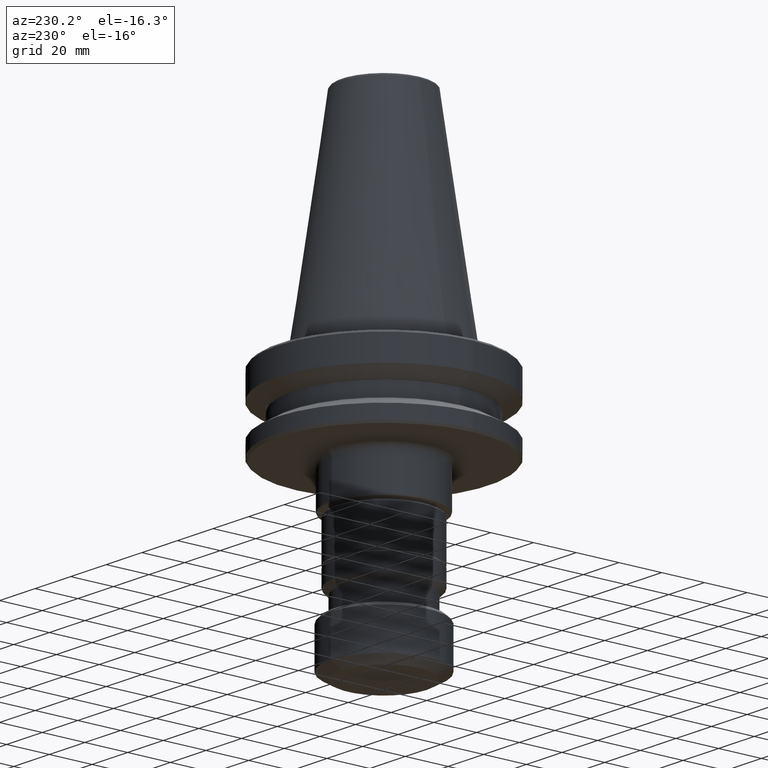
[diagram: clean part render]
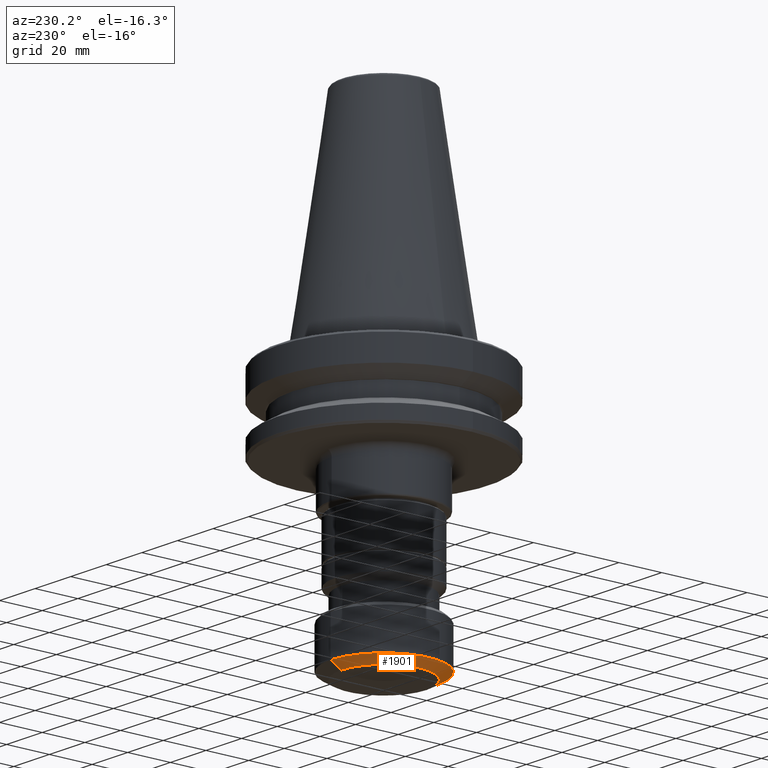
[diagram: same view with one face highlighted and labeled with its STEP entity id]
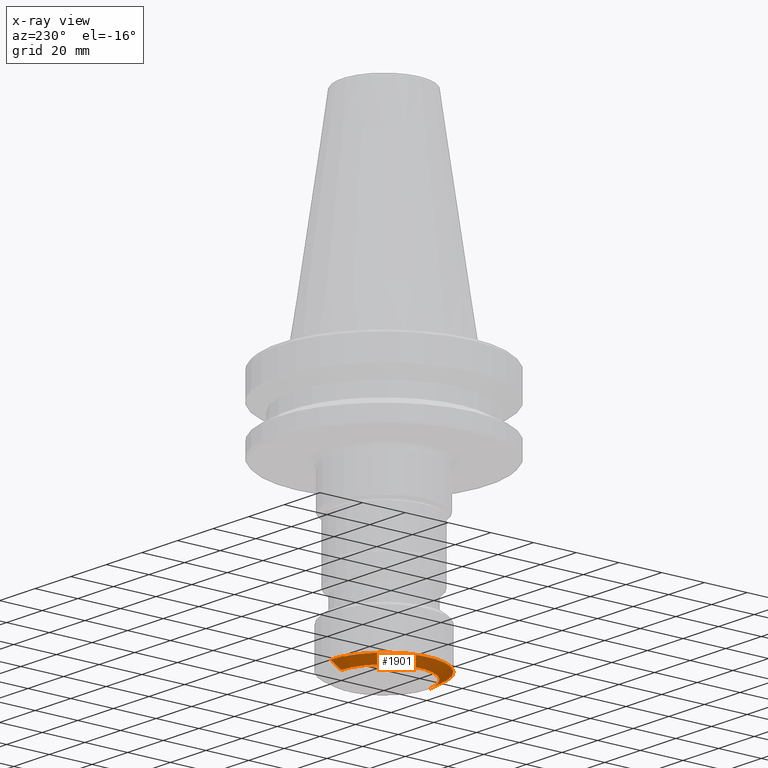
[diagram: x-ray of the same camera — body ghosted, the highlighted face saturated]
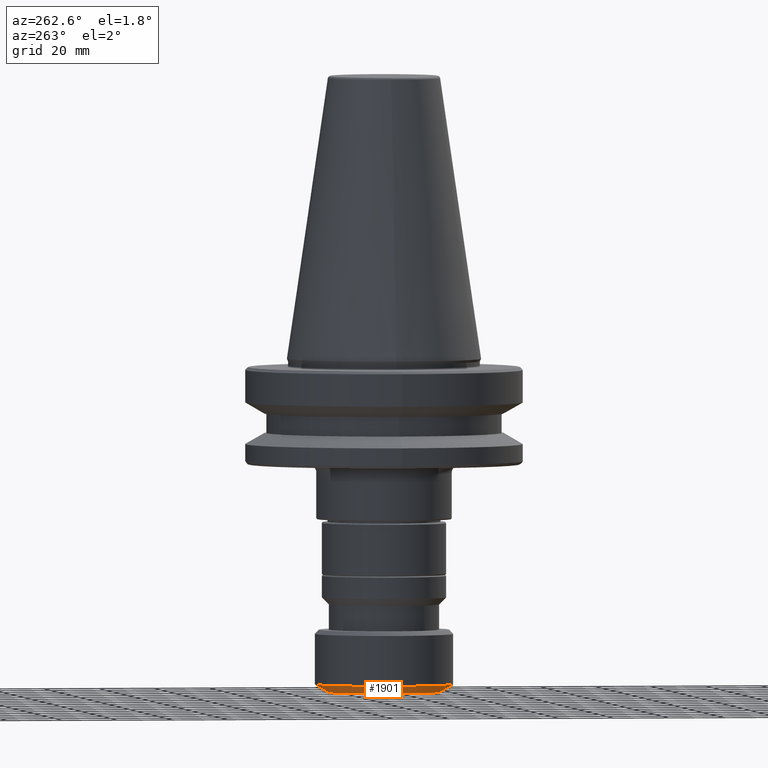
[diagram: same view with one face highlighted and labeled with its STEP entity id]
A machine part, auxiliary view. The second image highlights one B-rep face of the part: STEP entity #1901.
The next image is the same camera in x-ray: the body ghosted, the highlighted face saturated — about 0% of this face is hidden behind the body in this view.
A second angle (auxiliary view) of the same face is appended — the face is thin or edge-on in the first view.
In plain terms, the highlighted conical surface has half-angle 60 deg.
Its self-contained STEP definition (entity closure, byte-faithful):
#2 = ORIENTED_EDGE ( 'NONE', *, *, #1605, .T. ) ;
#4 = AXIS2_PLACEMENT_3D ( 'NONE', #1162, #1460, #1767 ) ;
#112 = ORIENTED_EDGE ( 'NONE', *, *, #910, .F. ) ;
#144 = DIRECTION ( 'NONE',  ( 1.060575238724933700E-016, 0.8660254037844391500, 0.4999999999999991100 ) ) ;
#194 = CONICAL_SURFACE ( 'NONE', #4, 19.99999999997114500, 1.047197551196641400 ) ;
#196 = CARTESIAN_POINT ( 'NONE',  ( 0.0000000000000000000, 4.990941933927533000E-012, -117.1132486540530000 ) ) ;
#303 = EDGE_CURVE ( 'NONE', #1239, #909, #446, .T. ) ;
#369 = CARTESIAN_POINT ( 'NONE',  ( 0.0000000000000000000, 5.113964807179663700E-012, -120.0000000000008400 ) ) ;
#402 = VECTOR ( 'NONE', #1025, 1000.000000000000000 ) ;
#406 = CARTESIAN_POINT ( 'NONE',  ( 0.0000000000000000000, -19.99999999996603300, -120.0000000000016900 ) ) ;
#446 = LINE ( 'NONE', #453, #402 ) ;
#450 = VERTEX_POINT ( 'NONE', #1414 ) ;
#453 = CARTESIAN_POINT ( 'NONE',  ( 0.0000000000000000000, -19.99999999996603300, -120.0000000000016900 ) ) ;
#501 = EDGE_CURVE ( 'NONE', #450, #909, #555, .T. ) ;
#512 = DIRECTION ( 'NONE',  ( 0.0000000000000000000, -1.000000000000000000, -4.232725281389516400E-014 ) ) ;
#555 = CIRCLE ( 'NONE', #613, 24.99999999997115900 ) ;
#580 = ORIENTED_EDGE ( 'NONE', *, *, #303, .T. ) ;
#613 = AXIS2_PLACEMENT_3D ( 'NONE', #196, #1096, #896 ) ;
#837 = AXIS2_PLACEMENT_3D ( 'NONE', #369, #1383, #512 ) ;
#896 = DIRECTION ( 'NONE',  ( 0.0000000000000000000, -1.000000000000000000, -4.274358644811784000E-014 ) ) ;
#909 = VERTEX_POINT ( 'NONE', #987 ) ;
#910 = EDGE_CURVE ( 'NONE', #1410, #450, #1377, .T. ) ;
#984 = VECTOR ( 'NONE', #144, 1000.000000000000000 ) ;
#987 = CARTESIAN_POINT ( 'NONE',  ( 0.0000000000000000000, -24.99999999996616000, -117.1132486540540600 ) ) ;
#988 = ORIENTED_EDGE ( 'NONE', *, *, #501, .F. ) ;
#1025 = DIRECTION ( 'NONE',  ( 0.0000000000000000000, -0.8660254037844817800, 0.4999999999999252800 ) ) ;
#1039 = CARTESIAN_POINT ( 'NONE',  ( 2.449293598291172800E-015, 19.99999999997626100, -120.0000000000000000 ) ) ;
#1096 = DIRECTION ( 'NONE',  ( -0.0000000000000000000, -4.261637339316356300E-014, 1.000000000000000000 ) ) ;
#1162 = CARTESIAN_POINT ( 'NONE',  ( 0.0000000000000000000, 5.113964807179663700E-012, -120.0000000000008400 ) ) ;
#1168 = EDGE_LOOP ( 'NONE', ( #112, #2, #580, #988 ) ) ;
#1239 = VERTEX_POINT ( 'NONE', #406 ) ;
#1348 = FACE_OUTER_BOUND ( 'NONE', #1168, .T. ) ;
#1377 = LINE ( 'NONE', #1039, #984 ) ;
#1383 = DIRECTION ( 'NONE',  ( -0.0000000000000000000, -4.261637339316356300E-014, 1.000000000000000000 ) ) ;
#1410 = VERTEX_POINT ( 'NONE', #1623 ) ;
#1414 = CARTESIAN_POINT ( 'NONE',  ( 3.061616997864852500E-015, 24.99999999997616100, -117.1132486540519300 ) ) ;
#1460 = DIRECTION ( 'NONE',  ( -0.0000000000000000000, -4.261637339316356300E-014, 1.000000000000000000 ) ) ;
#1605 = EDGE_CURVE ( 'NONE', #1410, #1239, #1888, .T. ) ;
#1623 = CARTESIAN_POINT ( 'NONE',  ( 2.755455298078011900E-015, 19.99999999997626100, -120.0000000000000000 ) ) ;
#1767 = DIRECTION ( 'NONE',  ( 0.0000000000000000000, -1.000000000000000000, -4.232725281389516400E-014 ) ) ;
#1888 = CIRCLE ( 'NONE', #837, 19.99999999997114500 ) ;
#1901 = ADVANCED_FACE ( 'NONE', ( #1348 ), #194, .T. ) ;